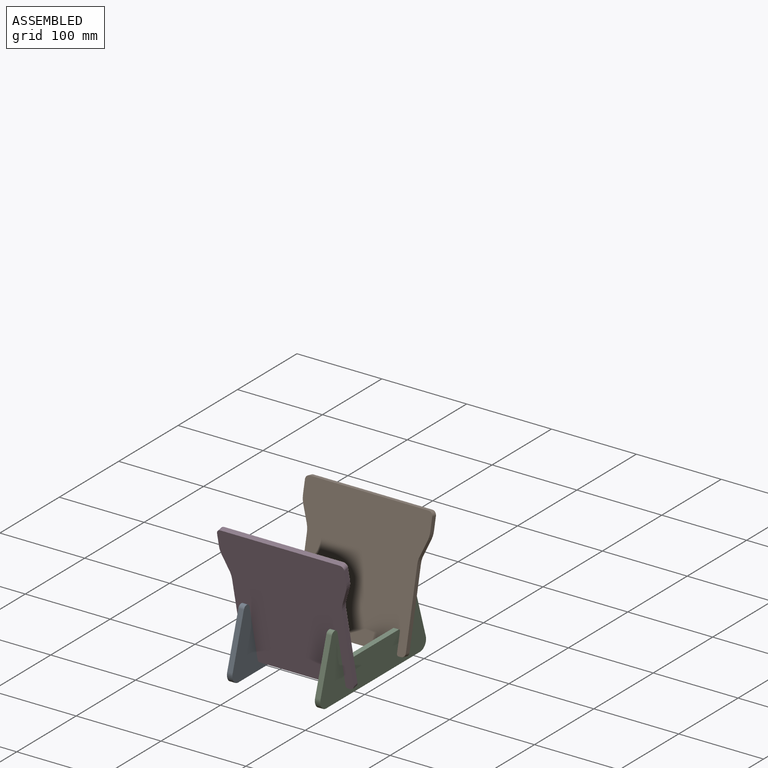
[diagram: assembled view]
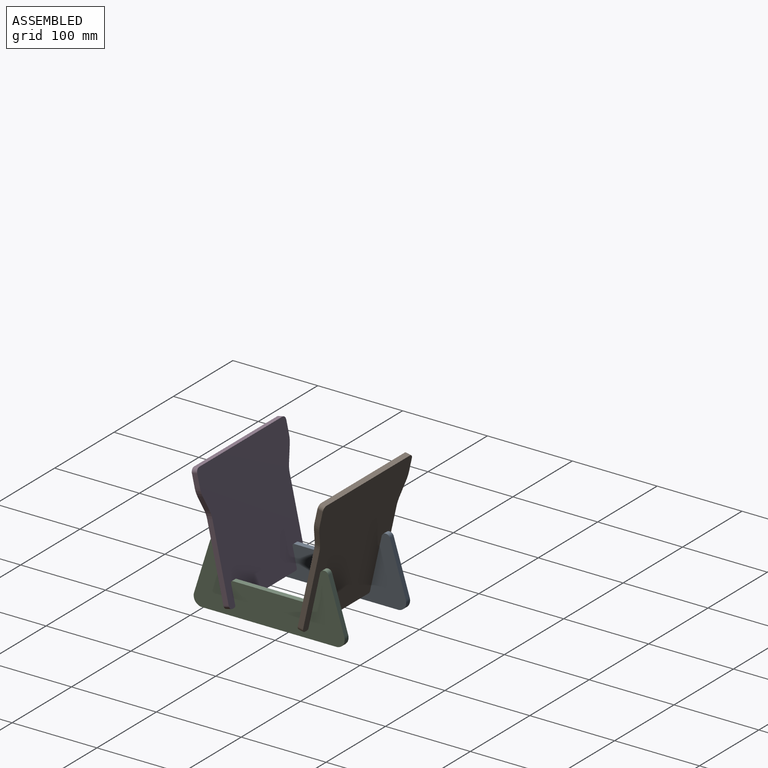
[diagram: assembled view, second angle]
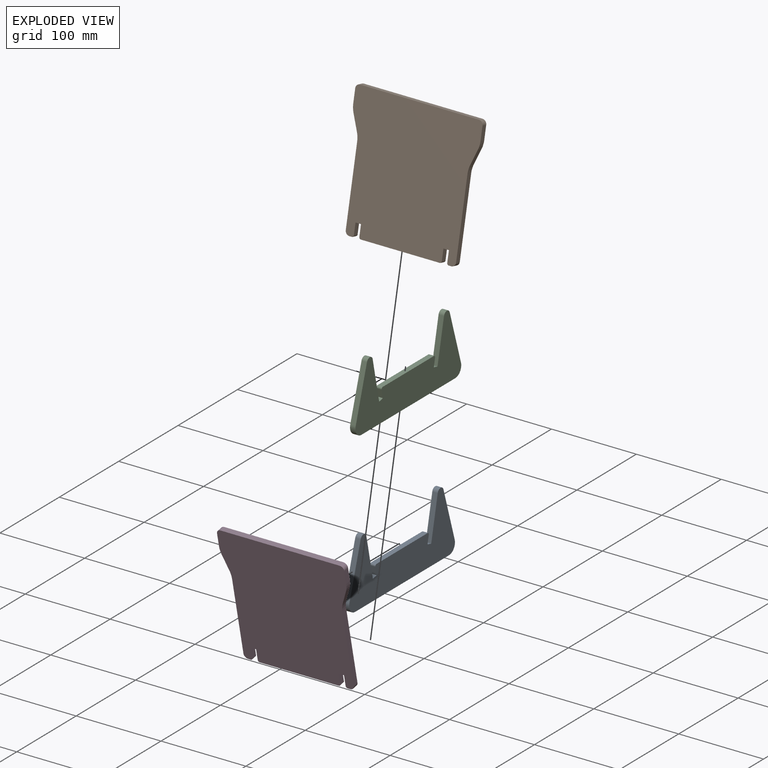
[diagram: exploded view]
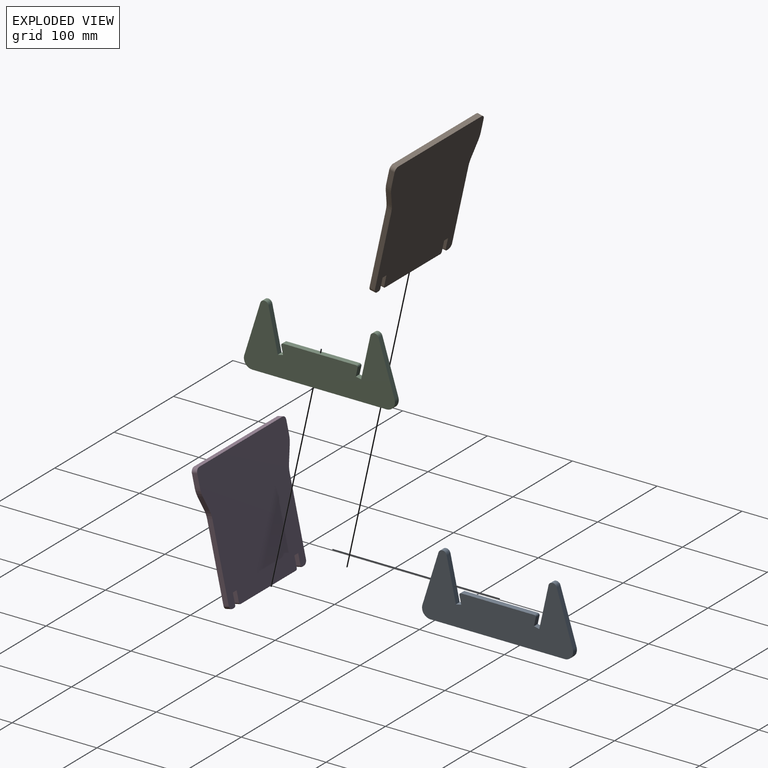
[diagram: exploded view, second angle]
ASSEMBLY  parts=4 mates=3
PART A: 18 faces, bbox 6.4x178x77.3 mm
  f0: cylinder r=5mm len=9.66mm, axis (-1,0,0), area 83.9mm2, adj f1,f15,f16,f17
  f1: plane 60.77x18.91mm, normal (0,-0.95,0.3), area 407.3mm2, adj f0,f2,f16,f17
  f2: cylinder r=10mm len=12.97mm, axis (-1,0,0), area 119.8mm2, adj f1,f3,f16,f17
  f3: plane 158.05x6.4mm, normal (0,0,-1), area 1011.5mm2, adj f2,f4,f16,f17
  f4: cylinder r=10mm len=12.97mm, axis (-1,0,0), area 119.8mm2, adj f3,f5,f16,f17
  f5: plane 60.77x18.91mm, normal (0,0.95,0.3), area 407.3mm2, adj f4,f6,f16,f17
  f6: cylinder r=5mm len=9.66mm, axis (-1,0,0), area 83.9mm2, adj f5,f7,f16,f17
  f7: plane 49.43x10.89mm, normal (0,-0.98,0.22), area 323.9mm2, adj f6,f8,f16,f17
  f8: plane 6.4x6.25mm, normal (0,0.22,0.98), area 41mm2, adj f7,f9,f16,f17
  f9: plane 9.65x6.4mm, normal (0,0.98,-0.22), area 63.3mm2, adj f8,f10,f16,f17
  f10: cylinder r=2mm len=6.4mm, axis (-1,0,0), area 22.9mm2, adj f9,f11,f16,f17
  f11: plane 86.07x6.4mm, normal (0,0,1), area 550.9mm2, adj f10,f12,f16,f17
  f12: cylinder r=2mm len=6.4mm, axis (-1,0,0), area 22.9mm2, adj f11,f13,f16,f17
  f13: plane 9.65x6.4mm, normal (0,-0.98,-0.22), area 63.3mm2, adj f12,f14,f16,f17
  f14: plane 6.4x6.25mm, normal (0,-0.22,0.98), area 41mm2, adj f13,f15,f16,f17
  f15: plane 49.43x10.89mm, normal (0,0.98,0.22), area 323.9mm2, adj f0,f14,f16,f17
  f16: plane 178.05x77.26mm, normal (1,0,0), area 7681mm2, adj f0,f1,f2,f3,f4,f5,f6,f7
  f17: plane 178.05x77.26mm, normal (-1,0,0), area 7681mm2, adj f0,f1,f2,f3,f4,f5,f6,f7
PART B: 30 faces, bbox 150x6.4x150 mm
  f0: plane 6.4x3mm, normal (0,0,-1), area 19.2mm2, adj f1,f27,f28,f29
  f1: cylinder r=2mm len=6.4mm, axis (0,1,0), area 20.1mm2, adj f0,f2,f28,f29
  f2: plane 13x6.4mm, normal (1,0,0), area 83.2mm2, adj f1,f3,f28,f29
  f3: plane 6.4x6.4mm, normal (0,0,-1), area 41mm2, adj f2,f4,f28,f29
  f4: plane 13x6.4mm, normal (-1,0,0), area 83.2mm2, adj f3,f5,f28,f29
  f5: cylinder r=2mm len=6.4mm, axis (0,1,0), area 20.1mm2, adj f4,f6,f28,f29
  f6: plane 93.2x6.4mm, normal (0,0,-1), area 596.5mm2, adj f5,f7,f28,f29
  f7: cylinder r=2mm len=6.4mm, axis (0,1,0), area 20.1mm2, adj f6,f8,f28,f29
  f8: plane 13x6.4mm, normal (1,0,0), area 83.2mm2, adj f7,f9,f28,f29
  f9: plane 6.4x6.4mm, normal (0,0,-1), area 41mm2, adj f8,f10,f28,f29
  f10: plane 13x6.4mm, normal (-1,0,0), area 83.2mm2, adj f9,f11,f28,f29
  f11: cylinder r=2mm len=6.4mm, axis (0,1,0), area 20.1mm2, adj f10,f12,f28,f29
  f12: plane 6.4x3mm, normal (0,0,-1), area 19.2mm2, adj f11,f13,f28,f29
  f13: cylinder r=5mm len=6.4mm, axis (0,1,0), area 50.3mm2, adj f12,f14,f28,f29
  f14: plane 89.23x6.4mm, normal (1,0,0), area 571.1mm2, adj f13,f15,f28,f29
  f15: cylinder r=25mm len=8.93mm, axis (0,1,0), area 58.4mm2, adj f14,f16,f28,f29
  f16: plane 17.53x6.7mm, normal (0.93,0,-0.36), area 120.1mm2, adj f15,f17,f28,f29
  f17: cylinder r=25mm len=8.93mm, axis (0,1,0), area 58.4mm2, adj f16,f18,f28,f29
  f18: plane 15.38x6.4mm, normal (1,0,0), area 98.5mm2, adj f17,f19,f28,f29
  f19: cylinder r=5mm len=6.4mm, axis (0,1,0), area 50.3mm2, adj f18,f20,f28,f29
  f20: plane 140x6.4mm, normal (0,0,1), area 896mm2, adj f19,f21,f28,f29
  f21: cylinder r=5mm len=6.4mm, axis (0,1,0), area 50.3mm2, adj f20,f22,f28,f29
  f22: plane 15.38x6.4mm, normal (-1,0,0), area 98.5mm2, adj f21,f23,f28,f29
  f23: cylinder r=25mm len=8.93mm, axis (0,1,0), area 58.4mm2, adj f22,f24,f28,f29
  f24: plane 17.53x6.7mm, normal (-0.93,0,-0.36), area 120.1mm2, adj f23,f25,f28,f29
  f25: cylinder r=25mm len=8.93mm, axis (0,1,0), area 58.4mm2, adj f24,f26,f28,f29
  f26: plane 89.23x6.4mm, normal (-1,0,0), area 571.1mm2, adj f25,f27,f28,f29
  f27: cylinder r=5mm len=6.4mm, axis (0,1,0), area 50.3mm2, adj f0,f26,f28,f29
  f28: plane 150x150mm, normal (0,-1,0), area 20044.6mm2, adj f0,f1,f2,f3,f4,f5,f6,f7
  f29: plane 150x150mm, normal (0,1,0), area 20044.6mm2, adj f0,f1,f2,f3,f4,f5,f6,f7
PART C: same geometry as A
PART D: same geometry as B
PLACE A at identity
PLACE B rot(axis=(-1,0,0),12.4deg) t=(55,45.88,9.26)mm
PLACE C t=(103.6,0,0)mm
PLACE D rot(axis=(1,0,0),12.4deg) t=(55,-39.63,10.64)mm
MATE fastened B.f3 <-> A.f8  axis (0,-0.22,-0.98) through (3.2,45.99,24.6)mm
MATE fastened C.f8 <-> B.f9  axis (0,0.22,0.98) through (106.8,45.99,24.6)mm
MATE fastened D.f3 <-> A.f14  axis (0,0.22,-0.98) through (3.2,-45.99,24.6)mm
